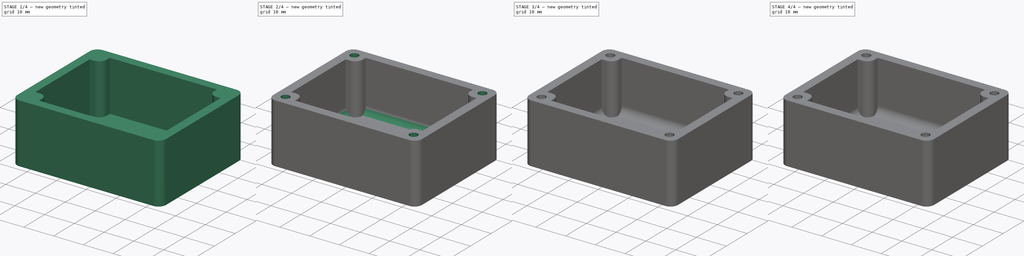
[diagram: build sequence overview — one tinted view per stage of 4, left to right]
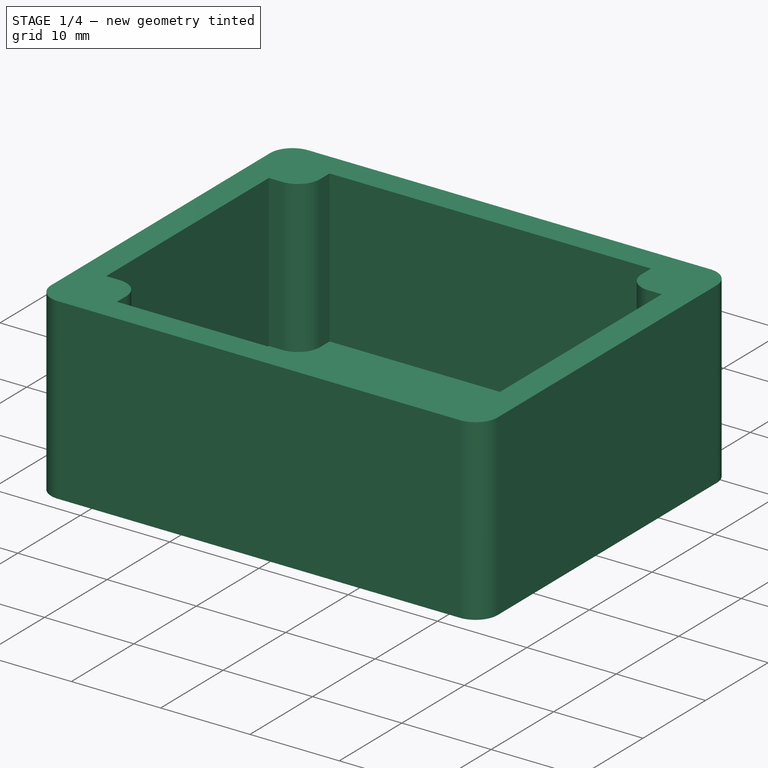
[diagram: stage 1 of 4 — iso view after this stage's code; geometry added in this stage tinted green]
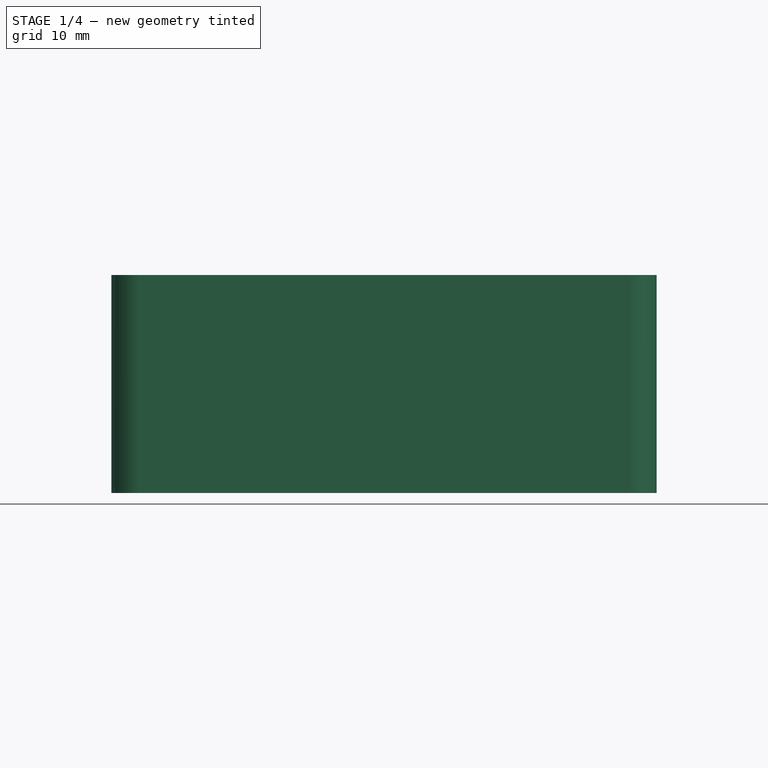
[diagram: stage 1 of 4 — front view after this stage's code; geometry added in this stage tinted green]
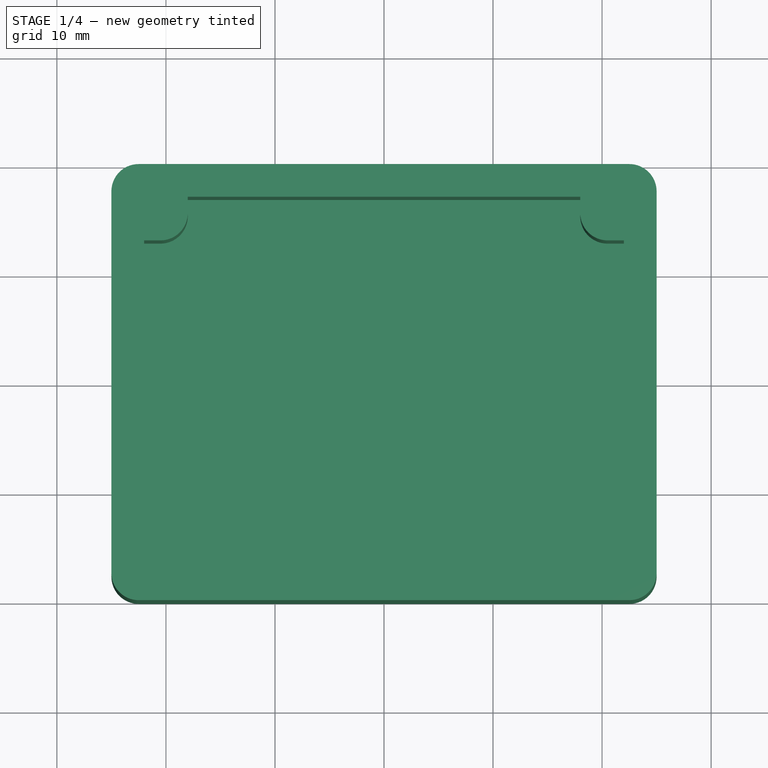
[diagram: stage 1 of 4 — top view after this stage's code; geometry added in this stage tinted green]
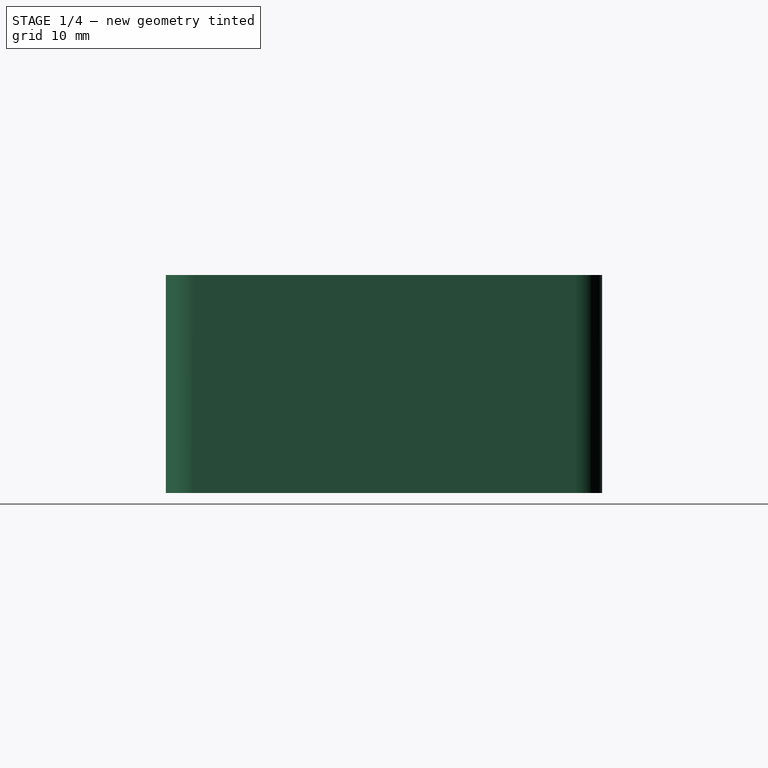
[diagram: stage 1 of 4 — right view after this stage's code; geometry added in this stage tinted green]
FCSTD DOCUMENT  (FreeCAD 1.0R39109 (Git))
Label: parametric Utility Box version 3.1
License: All rights reserved
LicenseURL: https://en.wikipedia.org/wiki/All_rights_reserved
objects: Sketcher::SketchObject×8, PartDesign::Pad×5, PartDesign::Pocket×4, Part::Part2DObjectPython×3, PartDesign::Body×3, Spreadsheet::Sheet×1, App::DocumentObjectGroup×1, PartDesign::AdditivePipe×1, PartDesign::Fillet×1, PartDesign::Chamfer×1
note: 58 computed .brp shape members not serialized (recipe doc carries the construction recipe); baked Part::Feature solids carry a one-line shape summary decoded from their .brp

FEATURE [Spreadsheet::Sheet] Spreadsheet
  cells = A1='Dimensions; B1='Values in mm.; A2='Box width; B2(boxwidth)=40; A3='Box length; B3(boxlength)=50; A4='Box depth; B4(boxdepth)=20; A5='Wall thickness; B5(wallthickness)=3; A6='Screw size; B6(screwsize)=3; A7='Screw pocket depth; B7(screwpocketdepth)=6; A8='Lid thickness; B8(lidthickness)=2; A10='reference values; B10='below.         Not; C10='editable; A11='Fillets; B11(cornerfillets)==B6 - 0.5; C11='computed; A12='screw pads; B12(screwpadsize)==B6 * 2 + 1; C12='computed; A13='screw hole offset; B13(screwholeoffset)==B12 / 2; C13='computed; A14='anchor length; B14(anchorlength)==B3 - B12 * 2; C14='computed; A15='anchor width; B15(anchorwidth)==B2 - B12 * 2; C15='computed
FEATURE [Sketcher::SketchObject] Sketch  label="body Sketch"
  ArcFitTolerance = 1e-06
  AttachmentSupport = -> [XY_Plane]
  FullyConstrained = true
  MakeInternals = false
  MapMode = 5
  expr: Constraints[31] = Spreadsheet.cornerfillets
  expr: Constraints[6] = Spreadsheet.boxlength
  expr: Constraints[7] = Spreadsheet.boxwidth
  sketch-geometry (17):
    g0: LineSegment StartX=-22.5 StartY=-20 StartZ=0 EndX=22.5 EndY=-20 EndZ=0
    g1: LineSegment StartX=25 StartY=-17.5 StartZ=0 EndX=25 EndY=17.5 EndZ=0
    g2: LineSegment StartX=22.5 StartY=20 StartZ=0 EndX=-22.5 EndY=20 EndZ=0
    g3: LineSegment StartX=-25 StartY=17.5 StartZ=0 EndX=-25 EndY=-17.5 EndZ=0
    g4: GeomPoint [constr] X=0 Y=0 Z=0
    g5: GeomPoint [constr] X=-25 Y=20 Z=0
    g6: GeomPoint [constr] X=-25 Y=-20 Z=0
    g7: GeomPoint [constr] X=25 Y=20 Z=0
    g8: GeomPoint [constr] X=25 Y=-20 Z=0
    g9: ArcOfCircle CenterX=-22.5 CenterY=17.5 CenterZ=0 NormalX=0 NormalY=0 NormalZ=1 AngleXU=0 Radius=2.5 StartAngle=1.5708 EndAngle=3.14159
    g10: GeomPoint [constr] X=-25 Y=20 Z=0
    g11: ArcOfCircle CenterX=22.5 CenterY=17.5 CenterZ=0 NormalX=0 NormalY=0 NormalZ=1 AngleXU=0 Radius=2.5 StartAngle=3e-16 EndAngle=1.5708
    g12: GeomPoint [constr] X=25 Y=20 Z=0
    g13: ArcOfCircle CenterX=22.5 CenterY=-17.5 CenterZ=0 NormalX=0 NormalY=0 NormalZ=1 AngleXU=0 Radius=2.5 StartAngle=4.71239 EndAngle=6.28319
    g14: GeomPoint [constr] X=25 Y=-20 Z=0
    g15: ArcOfCircle CenterX=-22.5 CenterY=-17.5 CenterZ=0 NormalX=0 NormalY=0 NormalZ=1 AngleXU=0 Radius=2.5 StartAngle=3.14159 EndAngle=4.71239
    g16: GeomPoint [constr] X=-25 Y=-20 Z=0
  constraints (32):
    c: Horizontal(g0)
    c: Horizontal(g2)
    c: Vertical(g1)
    c: Vertical(g3)
    c: Symmetric(g7,g6,g4)
    c: Coincident(g4,g-1)
    c: DistanceX(g5,g7) = 50
    c: DistanceY(g8,g7) = 40
    c: Coincident(g10,g5)
    c: Coincident(g12,g7)
    c: Coincident(g14,g8)
    c: Coincident(g16,g6)
    c: PointOnObject(g10,g2)
    c: PointOnObject(g10,g3)
    c: Tangent(g2,g9) = -1.5708
    c: Tangent(g3,g9) = -1.5708
    c: PointOnObject(g12,g2)
    c: PointOnObject(g12,g1)
    c: Tangent(g2,g11) = -1.5708
    c: Tangent(g1,g11) = -1.5708
    c: PointOnObject(g14,g1)
    c: PointOnObject(g14,g0)
    c: Tangent(g1,g13) = -1.5708
    c: Tangent(g0,g13) = -1.5708
    c: PointOnObject(g16,g0)
    c: PointOnObject(g16,g3)
    c: Tangent(g0,g15) = -1.5708
    c: Tangent(g3,g15) = -1.5708
    c: Equal(g9,g11)
    c: Equal(g9,g13)
    c: Equal(g9,g15)
    c: Radius(g9) = 2.5
FEATURE [Sketcher::SketchObject] Sketch007  label="mark Sketch"
  ArcFitTolerance = 1e-06
  FullyConstrained = false
  MakeInternals = false
  Placement = pos=(0,0,3) rot=(0,0,1;0rad)
  expr: .Placement.Base.z = Spreadsheet.wallthickness
  sketch-geometry (11):
    g0: LineSegment StartX=-2.05619 StartY=-3.42446 StartZ=0 EndX=-2.05619 EndY=2.94821 EndZ=0
    g1: LineSegment StartX=-2.05619 StartY=2.94821 StartZ=0 EndX=-1.00542 EndY=2.94066 EndZ=0
    g2: LineSegment StartX=-1.00542 StartY=2.94066 StartZ=0 EndX=-0.982738 EndY=0.257024 EndZ=0
    g3: LineSegment StartX=-0.982738 StartY=0.257024 StartZ=0 EndX=2.35857 EndY=2.91798 EndZ=0
    g4: LineSegment StartX=2.35857 StartY=2.91798 StartZ=0 EndX=3.71173 EndY=2.9331 EndZ=0
    g5: LineSegment StartX=3.71173 StartY=2.9331 StartZ=0 EndX=0 EndY=0 EndZ=0
    g6: LineSegment StartX=0 StartY=0 StartZ=0 EndX=3.98387 EndY=-3.42446 EndZ=0
    g7: LineSegment StartX=3.98387 StartY=-3.42446 StartZ=0 EndX=-2.05619 EndY=-3.42446 EndZ=0
    g8: LineSegment StartX=-0.990298 StartY=-0.370416 StartZ=0 EndX=-1.00542 EndY=-2.68363 EndZ=0
    g9: LineSegment StartX=-1.00542 StartY=-2.68363 StartZ=0 EndX=1.76137 EndY=-2.69119 EndZ=0
    g10: LineSegment StartX=1.76137 StartY=-2.69119 StartZ=0 EndX=-0.990298 EndY=-0.370416 EndZ=0
  constraints (11):
    c: Coincident(g0,g1)
    c: Coincident(g1,g2)
    c: Coincident(g2,g3)
    c: Coincident(g3,g4)
    c: Coincident(g4,g5)
    c: Coincident(g5,g6)
    c: Coincident(g6,g7)
    c: Coincident(g7,g0)
    c: Coincident(g8,g9)
    c: Coincident(g9,g10)
    c: Coincident(g10,g8)
FEATURE [Part::Part2DObjectPython] Clone2D  label="body Sketch clone"  # Draft 2D object (typed FeaturePython)
  Fuse = false
  Objects = -> [Sketch]
  Scale = (1,1,1)
FEATURE [PartDesign::Pad] Pad  label="main body Pad"
  Direction = (0,0,1)
  Length = 20
  Length2 = 10
  Profile = -> Clone2D
  ReferenceAxis = -> Clone2D [N_Axis]
  Refine = true
  Suppressed = false
  Type = 0
  expr: Length = Spreadsheet.boxdepth
FEATURE [Sketcher::SketchObject] Sketch011
  ArcFitTolerance = 1e-06
  AttachmentOffset = pos=(0,0,3) rot=(0,0,1;0rad)
  AttachmentSupport = -> [XY_Plane]
  FullyConstrained = true
  MakeInternals = false
  MapMode = 5
  Placement = pos=(0,0,3) rot=(0,0,1;0rad)
  expr: .AttachmentOffset.Base.z = Spreadsheet.wallthickness
  expr: Constraints[27] = Spreadsheet.cornerfillets
  expr: Constraints[6] = Spreadsheet.boxlength - Spreadsheet.wallthickness * 2
  expr: Constraints[7] = Spreadsheet.boxwidth - Spreadsheet.wallthickness * 2
  sketch-geometry (13):
    g0: LineSegment StartX=-19.5 StartY=-17 StartZ=0 EndX=19.5 EndY=-17 EndZ=0
    g1: LineSegment StartX=22 StartY=-14.5 StartZ=0 EndX=22 EndY=14.5 EndZ=0
    g2: LineSegment StartX=19.5 StartY=17 StartZ=0 EndX=-19.5 EndY=17 EndZ=0
    g3: LineSegment StartX=-22 StartY=14.5 StartZ=0 EndX=-22 EndY=-14.5 EndZ=0
    g4: GeomPoint [constr] X=0 Y=0 Z=0
    g5: ArcOfCircle CenterX=-19.5 CenterY=14.5 CenterZ=0 NormalX=0 NormalY=0 NormalZ=1 AngleXU=0 Radius=2.5 StartAngle=1.5708 EndAngle=3.14159
    g6: GeomPoint [constr] X=-22 Y=17 Z=0
    g7: ArcOfCircle CenterX=19.5 CenterY=14.5 CenterZ=0 NormalX=0 NormalY=0 NormalZ=1 AngleXU=0 Radius=2.5 StartAngle=4e-16 EndAngle=1.5708
    g8: GeomPoint [constr] X=22 Y=17 Z=0
    g9: ArcOfCircle CenterX=19.5 CenterY=-14.5 CenterZ=0 NormalX=0 NormalY=0 NormalZ=1 AngleXU=0 Radius=2.5 StartAngle=4.71239 EndAngle=6.28319
    g10: GeomPoint [constr] X=22 Y=-17 Z=0
    g11: ArcOfCircle CenterX=-19.5 CenterY=-14.5 CenterZ=0 NormalX=0 NormalY=0 NormalZ=1 AngleXU=0 Radius=2.5 StartAngle=3.14159 EndAngle=4.71239
    g12: GeomPoint [constr] X=-22 Y=-17 Z=0
  constraints (28):
    c: Horizontal(g0)
    c: Horizontal(g2)
    c: Vertical(g1)
    c: Vertical(g3)
    c: Symmetric(g8,g12,g4)
    c: Coincident(g4,g-1)
    c: Distance(g8,g6) = 44
    c: Distance(g12,g6) = 34
    c: PointOnObject(g6,g2)
    c: PointOnObject(g6,g3)
    c: Tangent(g2,g5) = -1.5708
    c: Tangent(g3,g5) = -1.5708
    c: PointOnObject(g8,g2)
    c: PointOnObject(g8,g1)
    c: Tangent(g2,g7) = -1.5708
    c: Tangent(g1,g7) = -1.5708
    c: PointOnObject(g10,g1)
    c: PointOnObject(g10,g0)
    c: Tangent(g1,g9) = -1.5708
    c: Tangent(g0,g9) = -1.5708
    c: PointOnObject(g12,g0)
    c: PointOnObject(g12,g3)
    c: Tangent(g0,g11) = -1.5708
    c: Tangent(g3,g11) = -1.5708
    c: Equal(g5,g7)
    c: Equal(g5,g9)
    c: Equal(g5,g11)
    c: Radius(g5) = 2.5
FEATURE [PartDesign::Pocket] Pocket  label="hollow out Pocket"
  BaseFeature = -> Pad
  Direction = (0,0,-1)
  Length = 17
  Length2 = 5
  Profile = -> Sketch011
  ReferenceAxis = -> Sketch011 [N_Axis]
  Refine = true
  Reversed = true
  Suppressed = false
  Type = 0
  expr: Length = Spreadsheet.boxdepth - Spreadsheet.wallthickness
FEATURE [Sketcher::SketchObject] Sketch012  label="fillet sweep path Sketch"
  ArcFitTolerance = 1e-06
  AttachmentOffset = pos=(0,0,3) rot=(0,0,1;0rad)
  AttachmentSupport = -> [XY_Plane]
  FullyConstrained = true
  MakeInternals = false
  MapMode = 5
  Placement = pos=(0,0,3) rot=(0,0,1;0rad)
  expr: .AttachmentOffset.Base.z = Spreadsheet.wallthickness
  expr: Constraints[10] = Spreadsheet.boxlength - Spreadsheet.wallthickness * 2
  expr: Constraints[11] = Spreadsheet.boxwidth - Spreadsheet.wallthickness * 2
  sketch-geometry (5):
    g0: LineSegment StartX=-22 StartY=-17 StartZ=0 EndX=22 EndY=-17 EndZ=0
    g1: LineSegment StartX=22 StartY=-17 StartZ=0 EndX=22 EndY=17 EndZ=0
    g2: LineSegment StartX=22 StartY=17 StartZ=0 EndX=-22 EndY=17 EndZ=0
    g3: LineSegment StartX=-22 StartY=17 StartZ=0 EndX=-22 EndY=-17 EndZ=0
    g4: GeomPoint [constr] X=0 Y=0 Z=0
  constraints (12):
    c: Coincident(g0,g1)
    c: Coincident(g1,g2)
    c: Coincident(g2,g3)
    c: Coincident(g3,g0)
    c: Horizontal(g0)
    c: Horizontal(g2)
    c: Vertical(g1)
    c: Vertical(g3)
    c: Symmetric(g2,g0,g4)
    c: Coincident(g4,g-1)
    c: Distance(g2) = 44
    c: Distance(g3) = 34
FEATURE [Sketcher::SketchObject] Sketch013  label="bottom fillet profile Sketch"
  ArcFitTolerance = 1e-06
  AttachmentSupport = -> [XZ_Plane]
  ExternalGeometry = -> [Sketch012]
  FullyConstrained = true
  MakeInternals = false
  MapMode = 5
  Placement = pos=(0,0,0) rot=(1,0,0;1.5708rad)
  expr: Constraints[7] = Spreadsheet.boxlength / 2 - Spreadsheet.wallthickness - Spreadsheet.screwsize + 0.5
  sketch-geometry (3):
    g0: LineSegment StartX=-22 StartY=3 StartZ=0 EndX=-22 EndY=5.5 EndZ=0
    g1: LineSegment StartX=-22 StartY=3 StartZ=0 EndX=-19.5 EndY=3 EndZ=0
    g2: ArcOfCircle CenterX=-19.5 CenterY=5.5 CenterZ=0 NormalX=0 NormalY=0 NormalZ=1 AngleXU=0 Radius=2.5 StartAngle=3.14159 EndAngle=4.71239
  constraints (9):
    c: Coincident(g0,g-3)
    c: Vertical(g0)
    c: Coincident(g1,g0)
    c: Horizontal(g1)
    c: Coincident(g2,g1)
    c: Coincident(g2,g0)
    c: Vertical(g1,g2)
    c: DistanceX(g1,g-1) = 19.5
    c: Equal(g1,g0)
FEATURE [PartDesign::Pad] Pad009  label="screw pads Pad"
  BaseFeature = -> Pocket
  Direction = (0,0,1)
  Length = 17
  Length2 = 10
  Profile = -> Clone2D001 [Edge5,Edge10,Edge9,Edge8,Edge7,Edge6,Edge26,Edge27,Edge28,Edge23,Edge24,Edge25,Edge11,Edge16,Edge15,Edge14,Edge13,Edge12,Edge18,Edge17,Edge22,Edge21,Edge20,Edge19]
  ReferenceAxis = -> Clone2D001 [N_Axis]
  Refine = true
  Reversed = true
  Suppressed = false
  Type = 0
  expr: Length = Spreadsheet.boxdepth - Spreadsheet.wallthickness
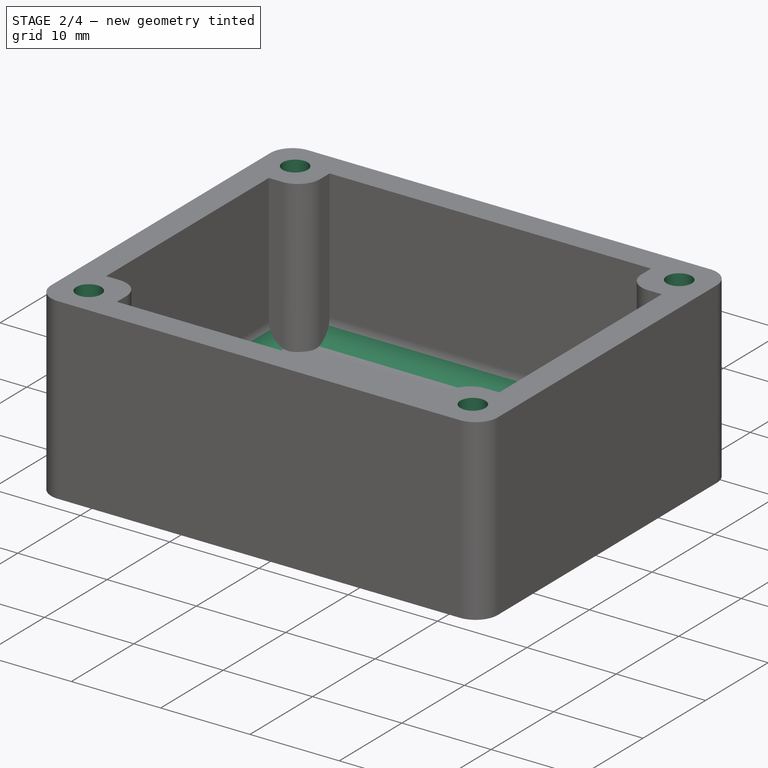
[diagram: stage 2 of 4 — iso view after this stage's code; geometry added in this stage tinted green]
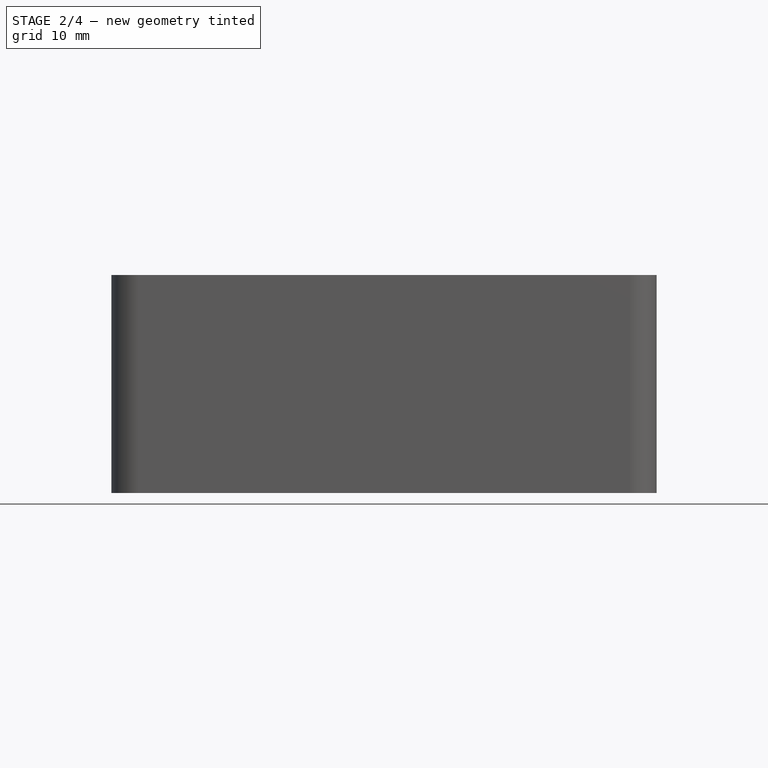
[diagram: stage 2 of 4 — front view after this stage's code; geometry added in this stage tinted green]
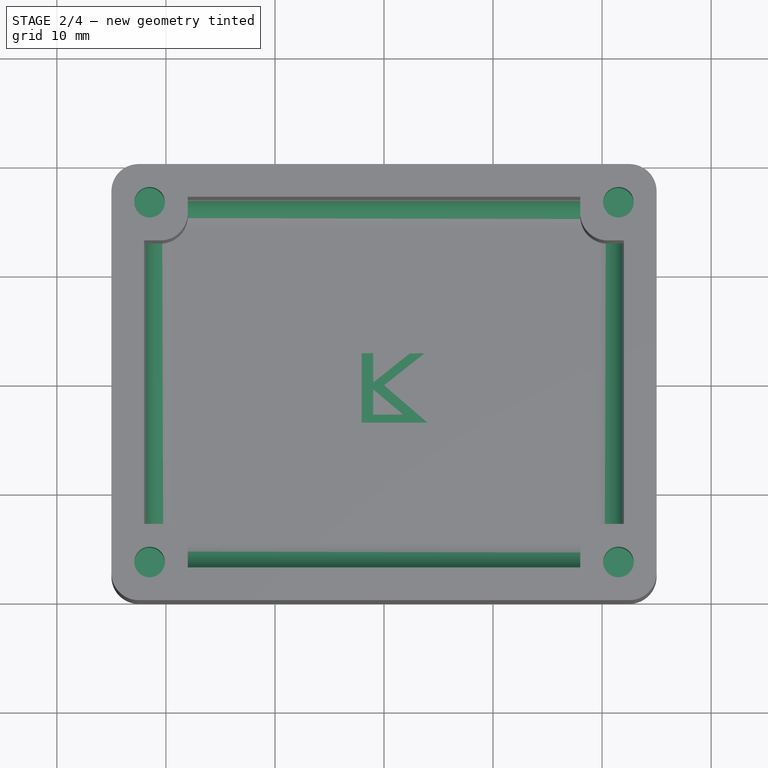
[diagram: stage 2 of 4 — top view after this stage's code; geometry added in this stage tinted green]
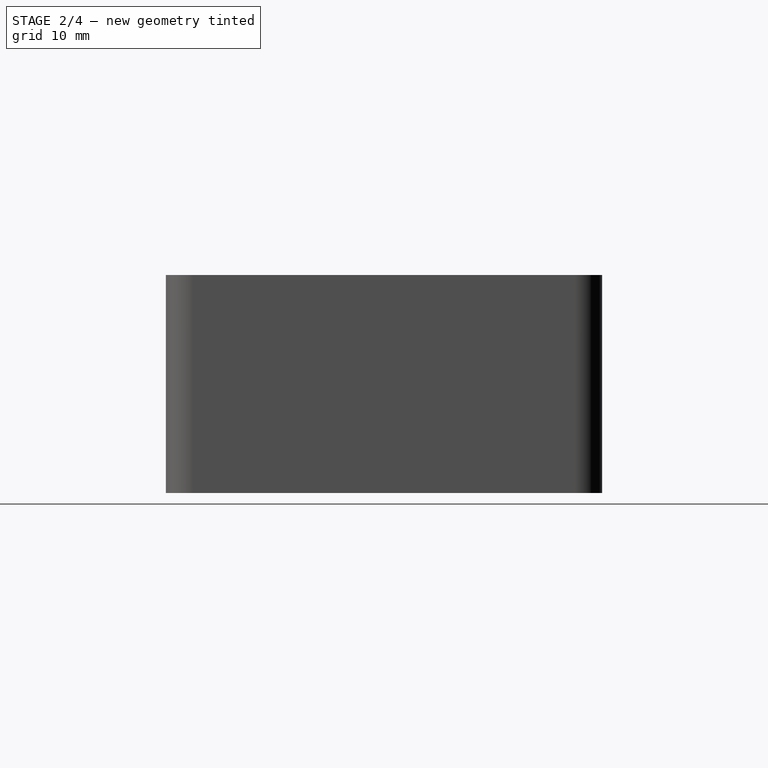
[diagram: stage 2 of 4 — right view after this stage's code; geometry added in this stage tinted green]
FEATURE [PartDesign::Pocket] Pocket002  label="screw holes Pocket"
  BaseFeature = -> Pad009
  Direction = (0,0,-1)
  Length = 6
  Length2 = 5
  Profile = -> Clone2D001 [Edge1,Edge4,Edge2,Edge3]
  ReferenceAxis = -> Clone2D001 [N_Axis]
  Refine = true
  Suppressed = false
  Type = 0
  expr: Length = Spreadsheet.screwpocketdepth
FEATURE [PartDesign::AdditivePipe] AdditivePipe  label="inside edge fillet AdditivePipe"
  AuxilleryCurvelinear = true
  AuxillerySpineTangent = false
  BaseFeature = -> Pocket002
  Binormal = (0,0,0)
  Mode = 0
  Profile = -> Sketch013
  Refine = true
  Spine = -> Sketch012
  SpineTangent = false
  Suppressed = false
  Transformation = 0
  Transition = 1
FEATURE [PartDesign::Body] Body001  label="Lid Body"
  AllowCompound = false
  Group = -> [Clone2D002,Pad003,Sketch009,Pad008,Pocket001,Chamfer001]
  Origin = -> Origin001
  Tip = -> Chamfer001
FEATURE [PartDesign::Pocket] Pocket003
  BaseFeature = -> AdditivePipe
  Direction = (0,0,-1)
  Length = 0.3
  Length2 = 5
  Profile = -> Sketch007
  ReferenceAxis = -> Sketch007 [N_Axis]
  Refine = true
  Suppressed = false
  Type = 0
FEATURE [PartDesign::Body] Body  label="Box Body"
  AllowCompound = false
  Group = -> [Clone2D,Pad,Clone2D001,Sketch007,Sketch011,Pocket,Sketch012,Sketch013,Pad009,Pocket002,AdditivePipe,Pocket003]
  Origin = -> Origin
  Tip = -> Pocket003
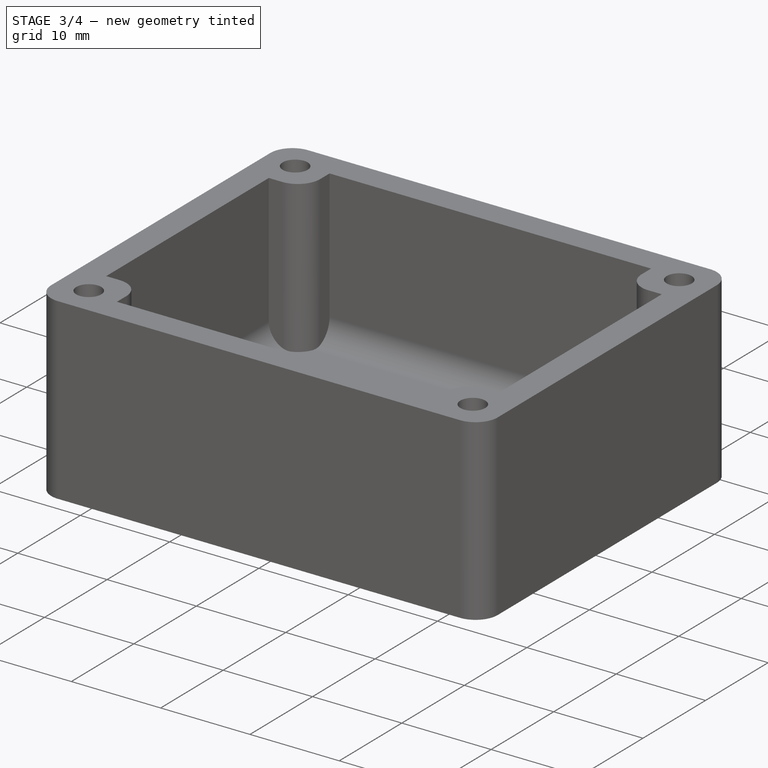
[diagram: stage 3 of 4 — iso view after this stage's code; geometry added in this stage tinted green]
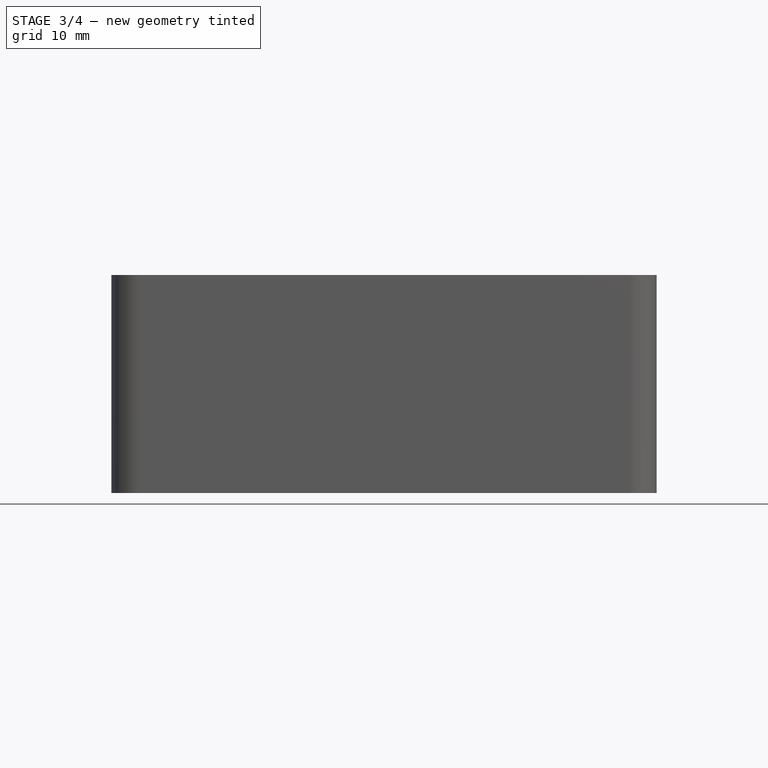
[diagram: stage 3 of 4 — front view after this stage's code; geometry added in this stage tinted green]
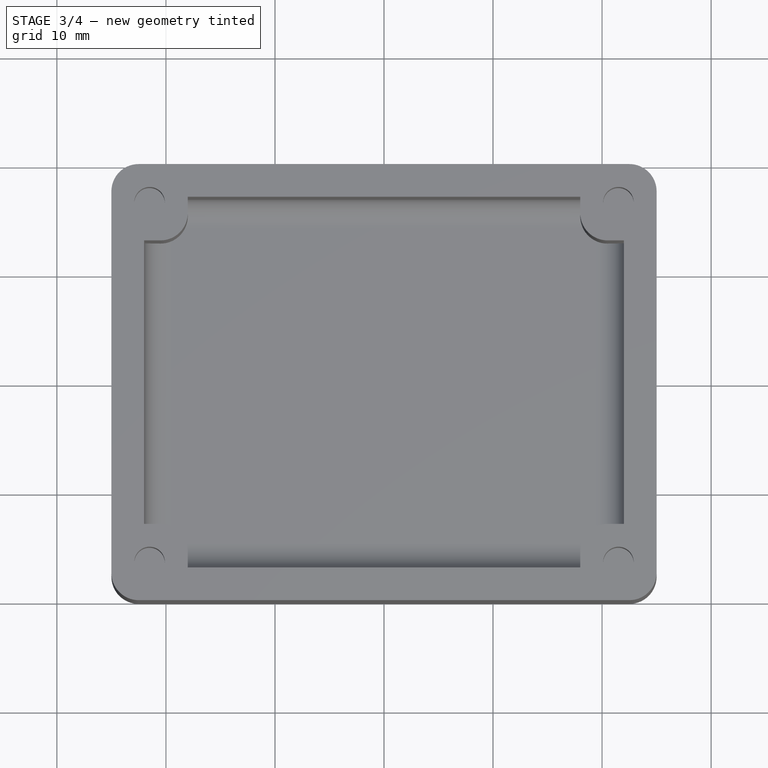
[diagram: stage 3 of 4 — top view after this stage's code; geometry added in this stage tinted green]
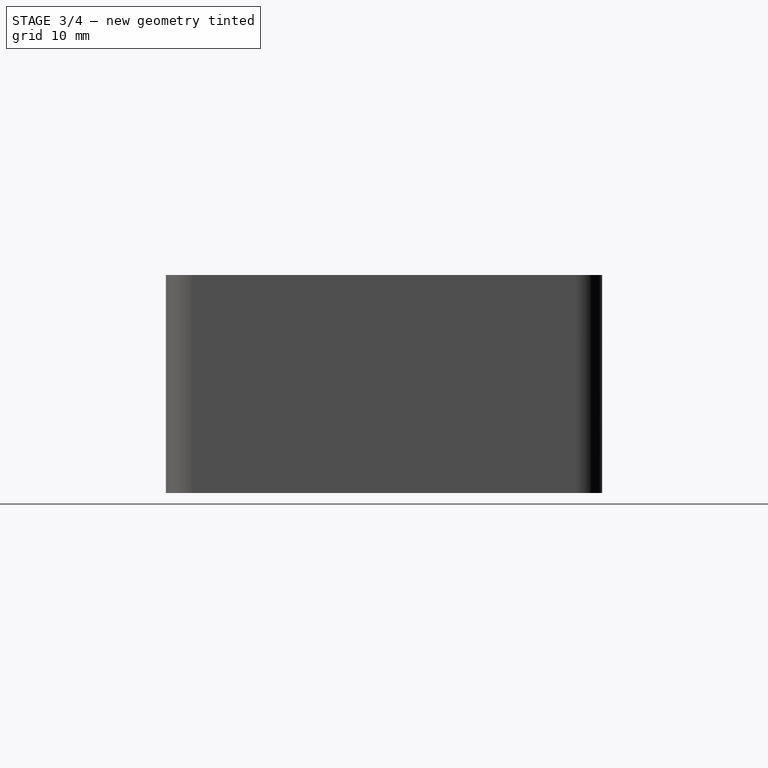
[diagram: stage 3 of 4 — right view after this stage's code; geometry added in this stage tinted green]
FEATURE [Sketcher::SketchObject] Sketch008  label="screw pads and holes Sketch"
  ArcFitTolerance = 1e-06
  AttachmentSupport = -> [XY_Plane]
  FullyConstrained = true
  MakeInternals = false
  MapMode = 5
  expr: Constraints[106] = Spreadsheet.cornerfillets
  expr: Constraints[10] = Spreadsheet.screwholeoffset
  expr: Constraints[11] = Spreadsheet.screwholeoffset
  expr: Constraints[12] = Spreadsheet.screwholeoffset
  expr: Constraints[13] = Spreadsheet.screwholeoffset
  expr: Constraints[5] = Spreadsheet.boxlength
  expr: Constraints[61] = Spreadsheet.anchorlength
  expr: Constraints[62] = Spreadsheet.anchorwidth
  expr: Constraints[6] = Spreadsheet.boxwidth
  expr: Constraints[8] = Spreadsheet.screwsize - 0.2
  expr: Constraints[9] = Spreadsheet.screwholeoffset
  sketch-geometry (50):
    g0: LineSegment [constr] StartX=25 StartY=20 StartZ=0 EndX=-25 EndY=20 EndZ=0
    g1: LineSegment [constr] StartX=-25 StartY=20 StartZ=0 EndX=-25 EndY=-20 EndZ=0
    g2: GeomPoint [constr] X=0 Y=0 Z=0
    g3: Circle CenterX=-21.5 CenterY=16.5 CenterZ=0 NormalX=0 NormalY=0 NormalZ=1 AngleXU=0 Radius=1.4
    g4: Circle CenterX=21.5 CenterY=16.5 CenterZ=0 NormalX=0 NormalY=0 NormalZ=1 AngleXU=0 Radius=1.4
    g5: Circle CenterX=21.5 CenterY=-16.5 CenterZ=0 NormalX=0 NormalY=0 NormalZ=1 AngleXU=0 Radius=1.4
    g6: Circle CenterX=-21.5 CenterY=-16.5 CenterZ=0 NormalX=0 NormalY=0 NormalZ=1 AngleXU=0 Radius=1.4
    g7: GeomPoint [constr] X=-25 Y=20 Z=0
    g8: GeomPoint [constr] X=25 Y=20 Z=0
    g9: GeomPoint [constr] X=25 Y=-20 Z=0
    g10: GeomPoint [constr] X=-25 Y=-20 Z=0
    g11: LineSegment StartX=-25 StartY=17.5 StartZ=0 EndX=-25 EndY=13 EndZ=0
    g12: LineSegment StartX=-25 StartY=13 StartZ=0 EndX=-20.5 EndY=13 EndZ=0
    g13: LineSegment StartX=-18 StartY=15.5 StartZ=0 EndX=-18 EndY=20 EndZ=0
    g14: LineSegment StartX=-18 StartY=20 StartZ=0 EndX=-22.5 EndY=20 EndZ=0
    g15: LineSegment StartX=22.5 StartY=20 StartZ=0 EndX=18 EndY=20 EndZ=0
    g16: LineSegment StartX=18 StartY=20 StartZ=0 EndX=18 EndY=15.5 EndZ=0
    g17: LineSegment StartX=20.5 StartY=13 StartZ=0 EndX=25 EndY=13 EndZ=0
    g18: LineSegment StartX=25 StartY=13 StartZ=0 EndX=25 EndY=17.5 EndZ=0
    g19: LineSegment StartX=25 StartY=-17.5 StartZ=0 EndX=25 EndY=-13 EndZ=0
    g20: LineSegment StartX=25 StartY=-13 StartZ=0 EndX=20.5 EndY=-13 EndZ=0
    g21: LineSegment StartX=18 StartY=-15.5 StartZ=0 EndX=18 EndY=-20 EndZ=0
    g22: LineSegment StartX=18 StartY=-20 StartZ=0 EndX=22.5 EndY=-20 EndZ=0
    g23: LineSegment StartX=-22.5 StartY=-20 StartZ=0 EndX=-18 EndY=-20 EndZ=0
    g24: LineSegment StartX=-18 StartY=-20 StartZ=0 EndX=-18 EndY=-15.5 EndZ=0
    g25: LineSegment StartX=-20.5 StartY=-13 StartZ=0 EndX=-25 EndY=-13 EndZ=0
    g26: LineSegment StartX=-25 StartY=-13 StartZ=0 EndX=-25 EndY=-17.5 EndZ=0
    g27: LineSegment [constr] StartX=25 StartY=20 StartZ=0 EndX=25 EndY=-20 EndZ=0
    g28: LineSegment [constr] StartX=25 StartY=-20 StartZ=0 EndX=-25 EndY=-20 EndZ=0
    g29: LineSegment [constr] StartX=-18 StartY=-13 StartZ=0 EndX=18 EndY=-13 EndZ=0
    g30: LineSegment [constr] StartX=18 StartY=-13 StartZ=0 EndX=18 EndY=13 EndZ=0
    g31: LineSegment [constr] StartX=18 StartY=13 StartZ=0 EndX=-18 EndY=13 EndZ=0
    g32: LineSegment [constr] StartX=-18 StartY=13 StartZ=0 EndX=-18 EndY=-13 EndZ=0
    g33: GeomPoint [constr] X=0 Y=0 Z=0
    g34: ArcOfCircle CenterX=-22.5 CenterY=17.5 CenterZ=0 NormalX=0 NormalY=0 NormalZ=1 AngleXU=0 Radius=2.5 StartAngle=1.5708 EndAngle=3.14159
    g35: GeomPoint [constr] X=-25 Y=20 Z=0
    g36: ArcOfCircle CenterX=-20.5 CenterY=15.5 CenterZ=0 NormalX=0 NormalY=0 NormalZ=1 AngleXU=0 Radius=2.5 StartAngle=4.71239 EndAngle=6.28319
    g37: GeomPoint [constr] X=-18 Y=13 Z=0
    g38: ArcOfCircle CenterX=22.5 CenterY=17.5 CenterZ=0 NormalX=0 NormalY=0 NormalZ=1 AngleXU=0 Radius=2.5 StartAngle=-9e-16 EndAngle=1.5708
    g39: GeomPoint [constr] X=25 Y=20 Z=0
    g40: ArcOfCircle CenterX=20.5 CenterY=15.5 CenterZ=0 NormalX=0 NormalY=0 NormalZ=1 AngleXU=0 Radius=2.5 StartAngle=3.14159 EndAngle=4.71239
    g41: GeomPoint [constr] X=18 Y=13 Z=0
    g42: ArcOfCircle CenterX=22.5 CenterY=-17.5 CenterZ=0 NormalX=0 NormalY=0 NormalZ=1 AngleXU=0 Radius=2.5 StartAngle=4.71239 EndAngle=6.28319
    g43: GeomPoint [constr] X=25 Y=-20 Z=0
    g44: ArcOfCircle CenterX=20.5 CenterY=-15.5 CenterZ=0 NormalX=0 NormalY=0 NormalZ=1 AngleXU=0 Radius=2.5 StartAngle=1.5708 EndAngle=3.14159
    g45: GeomPoint [constr] X=18 Y=-13 Z=0
    g46: ArcOfCircle CenterX=-20.5 CenterY=-15.5 CenterZ=0 NormalX=0 NormalY=0 NormalZ=1 AngleXU=0 Radius=2.5 StartAngle=3e-16 EndAngle=1.5708
    g47: GeomPoint [constr] X=-18 Y=-13 Z=0
    g48: ArcOfCircle CenterX=-22.5 CenterY=-17.5 CenterZ=0 NormalX=0 NormalY=0 NormalZ=1 AngleXU=0 Radius=2.5 StartAngle=3.14159 EndAngle=4.71239
    g49: GeomPoint [constr] X=-25 Y=-20 Z=0
  constraints (113):
    c: Coincident(g0,g1)
    c: Horizontal(g0)
    c: Vertical(g1)
    c: Symmetric(g0,g1,g2)
    c: Coincident(g2,g-1)
    c: Distance(g0) = 50
    c: Distance(g1) = 40
    c: Coincident(g7,g0)
    c: Diameter(g3) = 2.8
    c: DistanceX(g0,g3) = 3.5
    c: DistanceY(g3,g0) = 3.5
    c: DistanceY(g1,g6) = 3.5
    c: DistanceX(g5,g9) = 3.5
    c: DistanceY(g4,g0) = 3.5
    c: Coincident(g11,g12)
    c: Coincident(g13,g14)
    c: Vertical(g11)
    c: Vertical(g13)
    c: Horizontal(g12)
    c: Horizontal(g14)
    c: Coincident(g35,g0)
    c: Coincident(g15,g16)
    c: Coincident(g17,g18)
    c: Horizontal(g15)
    c: Horizontal(g17)
    c: Vertical(g16)
    c: Vertical(g18)
    c: Coincident(g39,g0)
    c: Coincident(g19,g20)
    c: Coincident(g21,g22)
    c: Vertical(g19)
    c: Vertical(g21)
    c: Horizontal(g20)
    c: Horizontal(g22)
    c: Coincident(g23,g24)
    c: Coincident(g25,g26)
    c: Horizontal(g23)
    c: Horizontal(g25)
    c: Vertical(g24)
    c: Vertical(g26)
    c: Coincident(g49,g1)
    c: Vertical(g9,g8)
    c: Coincident(g27,g8)
    c: Coincident(g27,g9)
    c: Coincident(g28,g9)
    c: Coincident(g28,g10)
    c: Horizontal(g28)
    c: Equal(g27,g1)
    c: Equal(g28,g0)
    c: Coincident(g9,g43)
    c: Coincident(g8,g0)
    c: Vertical(g5,g4)
    c: Coincident(g29,g30)
    c: Coincident(g30,g31)
    c: Coincident(g31,g32)
    c: Coincident(g32,g29)
    c: Horizontal(g31)
    c: Vertical(g30)
    c: Vertical(g32)
    c: Symmetric(g31,g29,g33)
    c: Coincident(g33,g2)
    c: Distance(g31) = 36
    c: Distance(g32) = 26
    c: Coincident(g37,g31)
    c: Coincident(g41,g30)
    c: Coincident(g45,g29)
    c: Coincident(g29,g47)
    c: PointOnObject(g35,g11)
    c: PointOnObject(g35,g14)
    c: Tangent(g11,g34) = -1.5708
    c: Tangent(g14,g34) = -1.5708
    c: PointOnObject(g37,g12)
    c: PointOnObject(g37,g13)
    c: Tangent(g12,g36) = -1.5708
    c: Tangent(g13,g36) = -1.5708
    c: PointOnObject(g39,g18)
    c: PointOnObject(g39,g15)
    c: Tangent(g18,g38) = -1.5708
    c: Tangent(g15,g38) = -1.5708
    c: PointOnObject(g41,g17)
    c: PointOnObject(g41,g16)
    c: Tangent(g17,g40) = -1.5708
    c: Tangent(g16,g40) = -1.5708
    c: PointOnObject(g43,g19)
    c: PointOnObject(g43,g22)
    c: Tangent(g19,g42) = -1.5708
    c: Tangent(g22,g42) = -1.5708
    c: PointOnObject(g45,g21)
    c: PointOnObject(g45,g20)
    c: Tangent(g21,g44) = -1.5708
    c: Tangent(g20,g44) = -1.5708
    c: PointOnObject(g47,g24)
    c: PointOnObject(g47,g25)
    c: Tangent(g24,g46) = -1.5708
    c: Tangent(g25,g46) = -1.5708
    c: PointOnObject(g49,g23)
    c: PointOnObject(g49,g26)
    c: Tangent(g23,g48) = -1.5708
    c: Tangent(g26,g48) = -1.5708
    c: Equal(g34,g36)
    c: Equal(g34,g38)
    c: Equal(g34,g40)
    c: Equal(g34,g42)
    c: Equal(g34,g44)
    c: Equal(g34,g48)
    c: Equal(g34,g46)
    c: Radius(g34) = 2.5
    c: Vertical(g3,g6)
    c: Horizontal(g29)
    c: Equal(g6,g3)
    c: Horizontal(g5,g6)
    c: Equal(g5,g6)
    c: Equal(g4,g3)
FEATURE [App::DocumentObjectGroup] Group  label="Master sketches"
  Group = -> [Sketch,Sketch008]
FEATURE [Part::Part2DObjectPython] Clone2D001  label="screw pads and holes Sketch clone"  # Draft 2D object (typed FeaturePython)
  Fuse = false
  Objects = -> [Sketch008]
  Placement = pos=(0,0,20) rot=(0,0,1;0rad)
  Scale = (1,1,1)
  expr: .Placement.Base.z = Spreadsheet.boxdepth
FEATURE [Part::Part2DObjectPython] Clone2D002  label="body Sketch clone001"  # Draft 2D object (typed FeaturePython)
  AttachmentSupport = -> [XY_Plane]
  Fuse = false
  MapMode = 5
  Objects = -> [Sketch]
  Scale = (1,1,1)
FEATURE [PartDesign::Pad] Pad003  label="lid body Pad"
  Direction = (0,0,1)
  Length = 2
  Length2 = 10
  Profile = -> Clone2D002
  ReferenceAxis = -> Clone2D002 [N_Axis]
  Refine = true
  Suppressed = false
  Type = 0
  expr: Length = Spreadsheet.lidthickness
FEATURE [PartDesign::Pad] Pad008  label="align Pad"
  BaseFeature = -> Pad003
  Direction = (0,0,1)
  Length = 1
  Length2 = 10
  Profile = -> Sketch009 [Edge1,Edge16,Edge15,Edge14,Edge13,Edge12,Edge11,Edge10,Edge9,Edge8,Edge7,Edge6,Edge5,Edge4,Edge3,Edge2]
  ReferenceAxis = -> Sketch009 [N_Axis]
  Refine = true
  Suppressed = false
  Type = 0
FEATURE [PartDesign::Pocket] Pocket001  label="screw holes Pocket001"
  BaseFeature = -> Pad008
  Direction = (0,0,-1)
  Length = 3
  Length2 = 5
  Profile = -> Sketch009 [Edge17,Edge18,Edge19,Edge20]
  ReferenceAxis = -> Sketch009 [N_Axis]
  Refine = true
  Suppressed = false
  Type = 0
  expr: Length = Spreadsheet.wallthickness
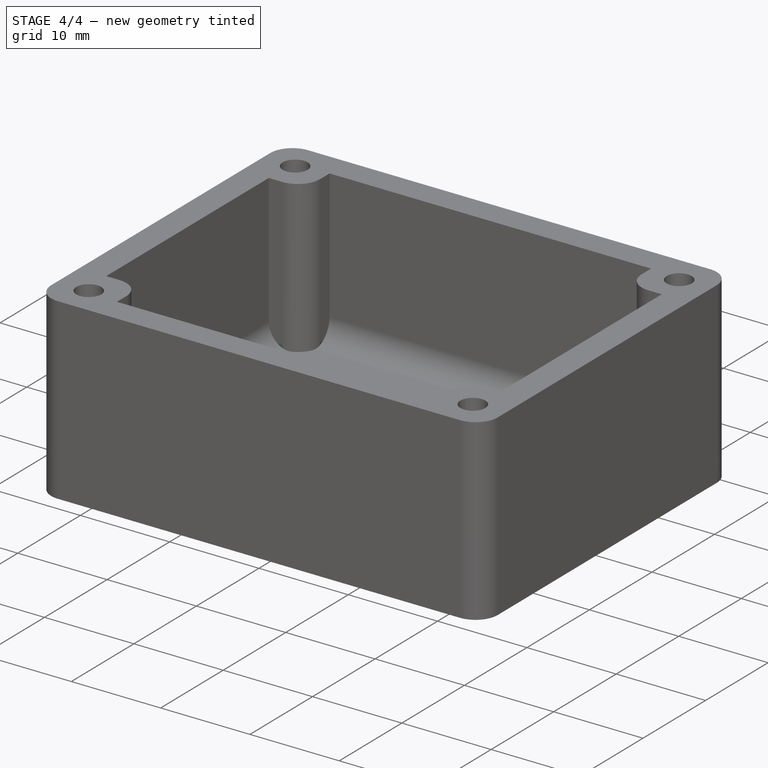
[diagram: stage 4 of 4 — iso view after this stage's code; geometry added in this stage tinted green]
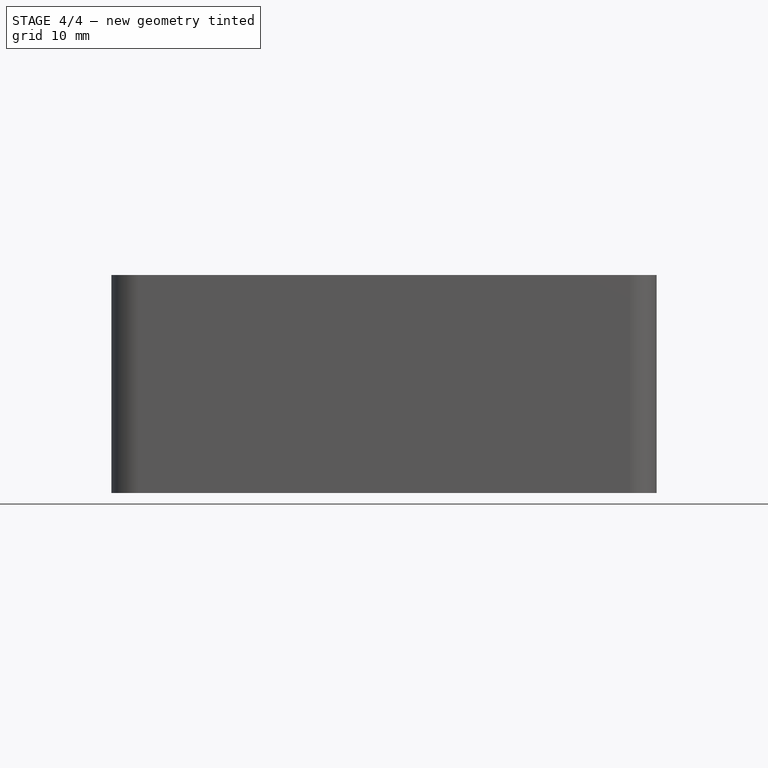
[diagram: stage 4 of 4 — front view after this stage's code; geometry added in this stage tinted green]
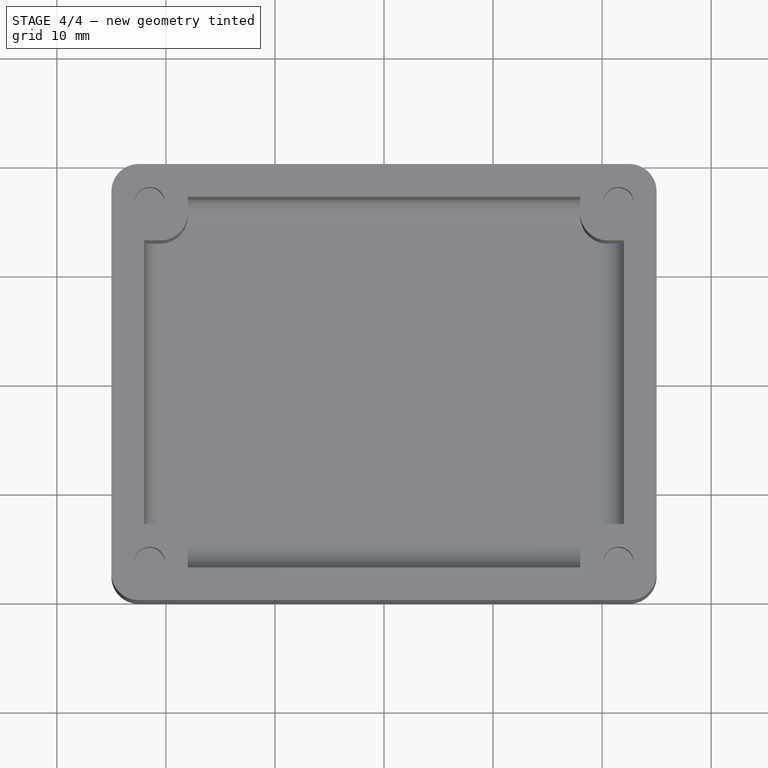
[diagram: stage 4 of 4 — top view after this stage's code; geometry added in this stage tinted green]
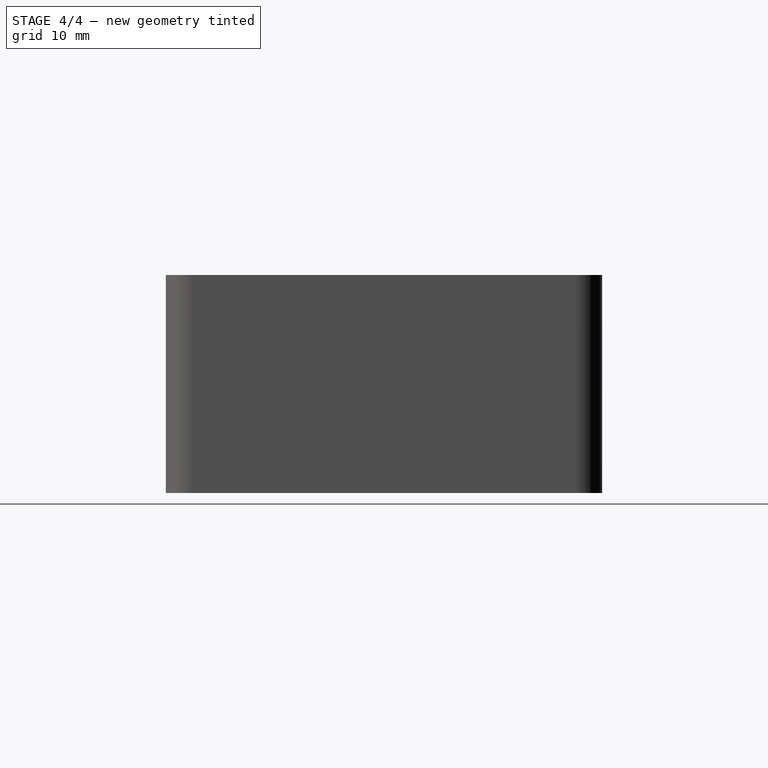
[diagram: stage 4 of 4 — right view after this stage's code; geometry added in this stage tinted green]
FEATURE [Sketcher::SketchObject] Sketch009  label="align pad Sketch"
  ArcFitTolerance = 1e-06
  AttachmentOffset = pos=(0,0,2) rot=(0,0,1;0rad)
  AttachmentSupport = -> [XY_Plane001]
  FullyConstrained = true
  MakeInternals = false
  MapMode = 5
  Placement = pos=(0,0,2) rot=(0,0,1;0rad)
  expr: .AttachmentOffset.Base.z = Spreadsheet.lidthickness
  expr: .Constraints.screwholeoffset = Spreadsheet.screwsize + 0.5
  expr: .Constraints.screwpadoffset = Spreadsheet.screwpadsize + 0.2
  expr: .Constraints.walloffset = Spreadsheet.wallthickness + 0.2
  expr: Constraints[10] = Spreadsheet.boxlength
  expr: Constraints[11] = Spreadsheet.boxwidth
  expr: Constraints[34] = .Constraints.screwpadoffset
  expr: Constraints[36] = .Constraints.screwpadoffset
  expr: Constraints[37] = .Constraints.walloffset
  expr: Constraints[39] = .Constraints.screwpadoffset
  expr: Constraints[40] = .Constraints.walloffset
  expr: Constraints[42] = .Constraints.screwpadoffset
  expr: Constraints[43] = .Constraints.walloffset
  expr: Constraints[47] = Spreadsheet.screwsize + 0.2
  expr: Constraints[49] = .Constraints.screwholeoffset
  expr: Constraints[51] = .Constraints.screwholeoffset
  expr: Constraints[53] = .Constraints.screwholeoffset
  expr: Constraints[55] = .Constraints.screwholeoffset
  expr: Constraints[75] = Spreadsheet.screwsize - 0.5
  sketch-geometry (30):
    g0: LineSegment [constr] StartX=-25 StartY=-20 StartZ=0 EndX=25 EndY=-20 EndZ=0
    g1: LineSegment [constr] StartX=25 StartY=-20 StartZ=0 EndX=25 EndY=20 EndZ=0
    g2: LineSegment [constr] StartX=25 StartY=20 StartZ=0 EndX=-25 EndY=20 EndZ=0
    g3: LineSegment [constr] StartX=-25 StartY=20 StartZ=0 EndX=-25 EndY=-20 EndZ=0
    g4: GeomPoint [constr] X=0 Y=0 Z=0
    g5: LineSegment StartX=-17.8 StartY=16.8 StartZ=0 EndX=17.8 EndY=16.8 EndZ=0
    g6: LineSegment StartX=17.8 StartY=16.8 StartZ=0 EndX=17.8 EndY=15.3 EndZ=0
    g7: LineSegment StartX=20.3 StartY=12.8 StartZ=0 EndX=21.8 EndY=12.8 EndZ=0
    g8: LineSegment StartX=21.8 StartY=12.8 StartZ=0 EndX=21.8 EndY=-12.8 EndZ=0
    g9: LineSegment StartX=21.8 StartY=-12.8 StartZ=0 EndX=20.3 EndY=-12.8 EndZ=0
    g10: LineSegment StartX=17.8 StartY=-15.3 StartZ=0 EndX=17.8 EndY=-16.8 EndZ=0
    g11: LineSegment StartX=17.8 StartY=-16.8 StartZ=0 EndX=-17.8 EndY=-16.8 EndZ=0
    g12: LineSegment StartX=-17.8 StartY=-16.8 StartZ=0 EndX=-17.8 EndY=-15.3 EndZ=0
    g13: LineSegment StartX=-20.3 StartY=-12.8 StartZ=0 EndX=-21.8 EndY=-12.8 EndZ=0
    g14: LineSegment StartX=-21.8 StartY=-12.8 StartZ=0 EndX=-21.8 EndY=12.8 EndZ=0
    g15: LineSegment StartX=-21.8 StartY=12.8 StartZ=0 EndX=-20.3 EndY=12.8 EndZ=0
    g16: LineSegment StartX=-17.8 StartY=15.3 StartZ=0 EndX=-17.8 EndY=16.8 EndZ=0
    g17: Circle CenterX=-21.5 CenterY=16.5 CenterZ=0 NormalX=0 NormalY=0 NormalZ=1 AngleXU=0 Radius=1.6
    g18: Circle CenterX=21.5 CenterY=16.5 CenterZ=0 NormalX=0 NormalY=0 NormalZ=1 AngleXU=0 Radius=1.6
    g19: Circle CenterX=21.5 CenterY=-16.5 CenterZ=0 NormalX=0 NormalY=0 NormalZ=1 AngleXU=0 Radius=1.6
    g20: Circle CenterX=-21.5 CenterY=-16.5 CenterZ=0 NormalX=0 NormalY=0 NormalZ=1 AngleXU=0 Radius=1.6
    g21: ArcOfCircle CenterX=-20.3 CenterY=15.3 CenterZ=0 NormalX=0 NormalY=0 NormalZ=1 AngleXU=0 Radius=2.5 StartAngle=4.71239 EndAngle=6.28319
    g22: GeomPoint [constr] X=-17.8 Y=12.8 Z=0
    g23: ArcOfCircle CenterX=20.3 CenterY=15.3 CenterZ=0 NormalX=0 NormalY=0 NormalZ=1 AngleXU=0 Radius=2.5 StartAngle=3.14159 EndAngle=4.71239
    g24: GeomPoint [constr] X=17.8 Y=12.8 Z=0
    g25: ArcOfCircle CenterX=20.3 CenterY=-15.3 CenterZ=0 NormalX=0 NormalY=0 NormalZ=1 AngleXU=0 Radius=2.5 StartAngle=1.5708 EndAngle=3.14159
    g26: GeomPoint [constr] X=17.8 Y=-12.8 Z=0
    g27: ArcOfCircle CenterX=-20.3 CenterY=-15.3 CenterZ=0 NormalX=0 NormalY=0 NormalZ=1 AngleXU=0 Radius=2.5 StartAngle=0 EndAngle=1.5708
    g28: GeomPoint [constr] X=-17.8 Y=-12.8 Z=0
    g29: GeomPoint [constr] X=0 Y=0 Z=0
  constraints (77):
    c: Coincident(g0,g1)
    c: Coincident(g1,g2)
    c: Coincident(g2,g3)
    c: Coincident(g3,g0)
    c: Horizontal(g0)
    c: Horizontal(g2)
    c: Vertical(g1)
    c: Vertical(g3)
    c: Symmetric(g2,g0,g4)
    c: Coincident(g4,g-1)
    c: Distance(g2) = 50
    c: Distance(g3) = 40
    c: Horizontal(g5)
    c: Coincident(g5,g6)
    c: Vertical(g6)
    c: Horizontal(g7)
    c: Coincident(g7,g8)
    c: Vertical(g8)
    c: Coincident(g8,g9)
    c: Horizontal(g9)
    c: Vertical(g10)
    c: Coincident(g10,g11)
    c: Coincident(g11,g12)
    c: Vertical(g12)
    c: Horizontal(g13)
    c: Coincident(g13,g14)
    c: Vertical(g14)
    c: Coincident(g14,g15)
    c: Horizontal(g15)
    c: Coincident(g16,g5)
    c: Horizontal(g11)
    c: Vertical(g16)
    c: DistanceY(g5,g2) = 3.2  'walloffset'
    c: DistanceX(g2,g5) = 7.2  'screwpadoffset'
    c: DistanceY(g22,g2) = 7.2
    c: Vertical(g28,g22)
    c: DistanceY(g0,g28) = 7.2
    c: DistanceY(g0,g11) = 3.2
    c: Horizontal(g28,g26)
    c: DistanceX(g26,g0) = 7.2
    c: DistanceX(g8,g0) = 3.2
    c: Vertical(g26,g24)
    c: DistanceY(g24,g1) = 7.2
    c: DistanceX(g2,g14) = 3.2
    c: Equal(g17,g18)
    c: Equal(g17,g19)
    c: Equal(g17,g20)
    c: Diameter(g17) = 3.2
    c: DistanceX(g2,g17) = 3.5  'screwholeoffset'
    c: DistanceY(g17,g2) = 3.5
    c: Vertical(g17,g20)
    c: DistanceY(g0,g20) = 3.5
    c: Horizontal(g20,g19)
    c: DistanceX(g19,g0) = 3.5
    c: Vertical(g19,g18)
    c: DistanceY(g18,g1) = 3.5
    c: PointOnObject(g22,g16)
    c: PointOnObject(g22,g15)
    c: Tangent(g16,g21) = -1.5708
    c: Tangent(g15,g21) = -1.5708
    c: PointOnObject(g24,g7)
    c: PointOnObject(g24,g6)
    c: Tangent(g7,g23) = -1.5708
    c: Tangent(g6,g23) = -1.5708
    c: PointOnObject(g26,g10)
    c: PointOnObject(g26,g9)
    c: Tangent(g10,g25) = -1.5708
    c: Tangent(g9,g25) = -1.5708
    c: PointOnObject(g28,g12)
    c: PointOnObject(g28,g13)
    c: Tangent(g12,g27) = -1.5708
    c: Tangent(g13,g27) = -1.5708
    c: Equal(g21,g23)
    c: Equal(g21,g25)
    c: Equal(g21,g27)
    c: Radius(g21) = 2.5
    c: Coincident(g29,g4)
FEATURE [Sketcher::SketchObject] Sketch010  label="align pad Sketch001"
  ArcFitTolerance = 1e-06
  AttachmentOffset = pos=(0,0,3) rot=(0,0,1;0rad)
  AttachmentSupport = -> [XY_Plane003]
  FullyConstrained = true
  MakeInternals = false
  MapMode = 5
  Placement = pos=(0,0,3) rot=(0,0,1;0rad)
  expr: .AttachmentOffset.Base.z = Spreadsheet.wallthickness
  expr: .Constraints.screwholeoffset = Spreadsheet.screwpadsize / 2
  expr: .Constraints.screwpadoffset = Spreadsheet.screwpadsize
  expr: .Constraints.walloffset = Spreadsheet.wallthickness
  expr: Constraints[10] = Spreadsheet.boxlength
  expr: Constraints[11] = Spreadsheet.boxwidth
  expr: Constraints[38] = .Constraints.screwpadoffset
  expr: Constraints[40] = .Constraints.screwpadoffset
  expr: Constraints[41] = .Constraints.walloffset
  expr: Constraints[43] = .Constraints.screwpadoffset
  expr: Constraints[44] = .Constraints.walloffset
  expr: Constraints[46] = .Constraints.screwpadoffset
  expr: Constraints[47] = .Constraints.walloffset
  expr: Constraints[51] = Spreadsheet.screwsize + 0.2
  expr: Constraints[53] = .Constraints.screwholeoffset
  expr: Constraints[55] = .Constraints.screwholeoffset
  expr: Constraints[57] = .Constraints.screwholeoffset
  expr: Constraints[59] = .Constraints.screwholeoffset
  sketch-geometry (21):
    g0: LineSegment StartX=-25 StartY=-20 StartZ=0 EndX=25 EndY=-20 EndZ=0
    g1: LineSegment StartX=25 StartY=-20 StartZ=0 EndX=25 EndY=20 EndZ=0
    g2: LineSegment StartX=25 StartY=20 StartZ=0 EndX=-25 EndY=20 EndZ=0
    g3: LineSegment StartX=-25 StartY=20 StartZ=0 EndX=-25 EndY=-20 EndZ=0
    g4: GeomPoint [constr] X=0 Y=0 Z=0
    g5: LineSegment StartX=-18 StartY=17 StartZ=0 EndX=18 EndY=17 EndZ=0
    g6: LineSegment StartX=18 StartY=17 StartZ=0 EndX=18 EndY=13 EndZ=0
    g7: LineSegment StartX=18 StartY=13 StartZ=0 EndX=22 EndY=13 EndZ=0
    g8: LineSegment StartX=22 StartY=13 StartZ=0 EndX=22 EndY=-13 EndZ=0
    g9: LineSegment StartX=22 StartY=-13 StartZ=0 EndX=18 EndY=-13 EndZ=0
    g10: LineSegment StartX=18 StartY=-13 StartZ=0 EndX=18 EndY=-17 EndZ=0
    g11: LineSegment StartX=18 StartY=-17 StartZ=0 EndX=-18 EndY=-17 EndZ=0
    g12: LineSegment StartX=-18 StartY=-17 StartZ=0 EndX=-18 EndY=-13 EndZ=0
    g13: LineSegment StartX=-18 StartY=-13 StartZ=0 EndX=-22 EndY=-13 EndZ=0
    g14: LineSegment StartX=-22 StartY=-13 StartZ=0 EndX=-22 EndY=13 EndZ=0
    g15: LineSegment StartX=-22 StartY=13 StartZ=0 EndX=-18 EndY=13 EndZ=0
    g16: LineSegment StartX=-18 StartY=13 StartZ=0 EndX=-18 EndY=17 EndZ=0
    g17: Circle CenterX=-21.5 CenterY=16.5 CenterZ=0 NormalX=0 NormalY=0 NormalZ=1 AngleXU=0 Radius=1.6
    g18: Circle CenterX=21.5 CenterY=16.5 CenterZ=0 NormalX=0 NormalY=0 NormalZ=1 AngleXU=0 Radius=1.6
    g19: Circle CenterX=21.5 CenterY=-16.5 CenterZ=0 NormalX=0 NormalY=0 NormalZ=1 AngleXU=0 Radius=1.6
    g20: Circle CenterX=-21.5 CenterY=-16.5 CenterZ=0 NormalX=0 NormalY=0 NormalZ=1 AngleXU=0 Radius=1.6
  constraints (60):
    c: Coincident(g0,g1)
    c: Coincident(g1,g2)
    c: Coincident(g2,g3)
    c: Coincident(g3,g0)
    c: Horizontal(g0)
    c: Horizontal(g2)
    c: Vertical(g1)
    c: Vertical(g3)
    c: Symmetric(g2,g0,g4)
    c: Coincident(g4,g-1)
    c: Distance(g2) = 50
    c: Distance(g3) = 40
    c: Horizontal(g5)
    c: Coincident(g5,g6)
    c: Vertical(g6)
    c: Coincident(g6,g7)
    c: Horizontal(g7)
    c: Coincident(g7,g8)
    c: Vertical(g8)
    c: Coincident(g8,g9)
    c: Horizontal(g9)
    c: Coincident(g9,g10)
    c: Vertical(g10)
    c: Coincident(g10,g11)
    c: Coincident(g11,g12)
    c: Vertical(g12)
    c: Coincident(g12,g13)
    c: Horizontal(g13)
    c: Coincident(g13,g14)
    c: Vertical(g14)
    c: Coincident(g14,g15)
    c: Horizontal(g15)
    c: Coincident(g15,g16)
    c: Coincident(g16,g5)
    c: Horizontal(g11)
    c: Vertical(g16)
    c: DistanceY(g5,g2) = 3  'walloffset'
    c: DistanceX(g2,g5) = 7  'screwpadoffset'
    c: DistanceY(g15,g2) = 7
    c: Vertical(g12,g15)
    c: DistanceY(g0,g12) = 7
    c: DistanceY(g0,g11) = 3
    c: Horizontal(g12,g9)
    c: DistanceX(g9,g0) = 7
    c: DistanceX(g8,g0) = 3
    c: Vertical(g9,g6)
    c: DistanceY(g6,g1) = 7
    c: DistanceX(g2,g14) = 3
    c: Equal(g17,g18)
    c: Equal(g17,g19)
    c: Equal(g17,g20)
    c: Diameter(g17) = 3.2
    c: DistanceX(g2,g17) = 3.5  'screwholeoffset'
    c: DistanceY(g17,g2) = 3.5
    c: Vertical(g17,g20)
    c: DistanceY(g0,g20) = 3.5
    c: Horizontal(g20,g19)
    c: DistanceX(g19,g0) = 3.5
    c: Vertical(g19,g18)
    c: DistanceY(g18,g1) = 3.5
FEATURE [PartDesign::Pad] Pad005
  Direction = (0,0,1)
  Length = 0.5
  Length2 = 10
  Profile = -> Sketch010
  ReferenceAxis = -> Sketch010 [N_Axis]
  Refine = true
  Suppressed = false
  Type = 0
FEATURE [PartDesign::Fillet] Fillet
  Base = -> Pad005 [Edge8,Edge44,Edge35,Edge1,Edge2,Edge26,Edge5,Edge17]
  BaseFeature = -> Pad005
  Radius = 2.5
  Refine = true
  SupportTransform = false
  Suppressed = false
  UseAllEdges = false
  expr: Radius = Spreadsheet.cornerfillets
FEATURE [PartDesign::Body] Body003  label="Gasket Body"
  AllowCompound = false
  Group = -> [Sketch010,Pad005,Fillet]
  Origin = -> Origin003
  Tip = -> Fillet
FEATURE [PartDesign::Chamfer] Chamfer001  label="bottom Chamfers"
  Angle = 45
  Base = -> Pocket001 [Edge11,Edge16,Edge18,Edge19,Edge17]
  BaseFeature = -> Pocket001
  ChamferType = 0
  FlipDirection = false
  Refine = true
  Size = 0.5
  Size2 = 1
  SupportTransform = false
  Suppressed = false
  UseAllEdges = false
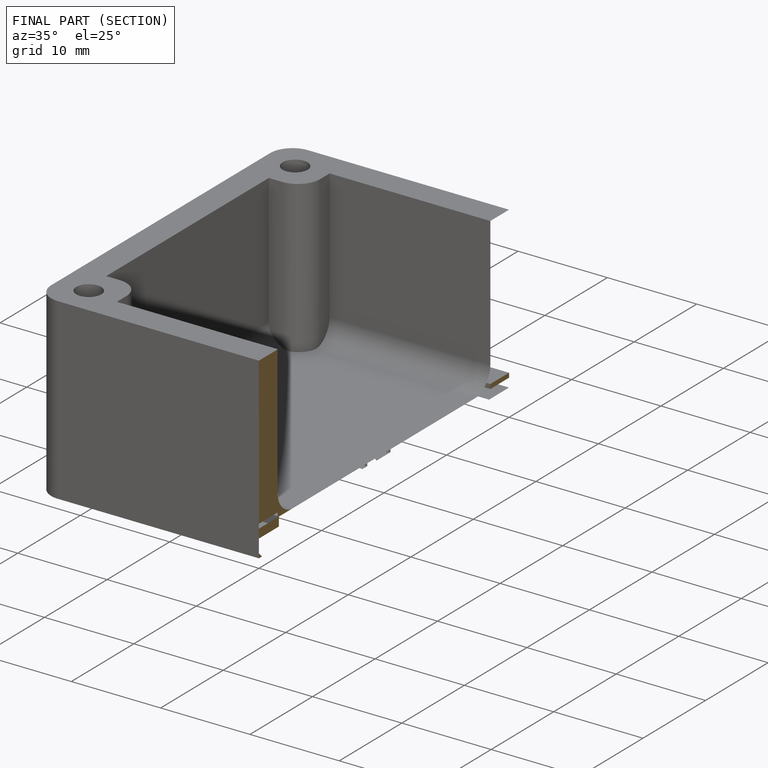
[diagram: finished part — half-section view (interior)]
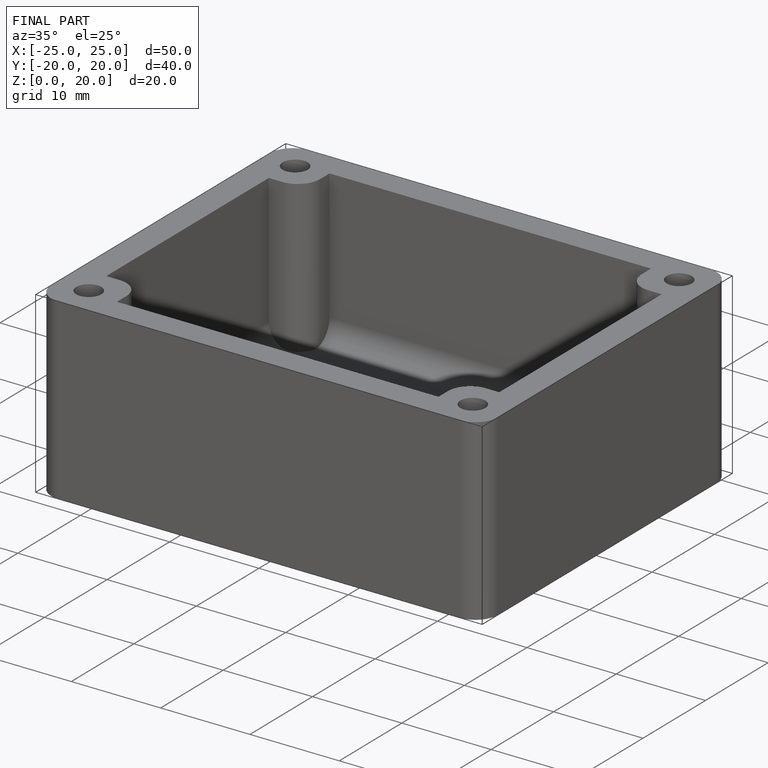
[diagram: finished part — iso view with bounding-box wireframe]
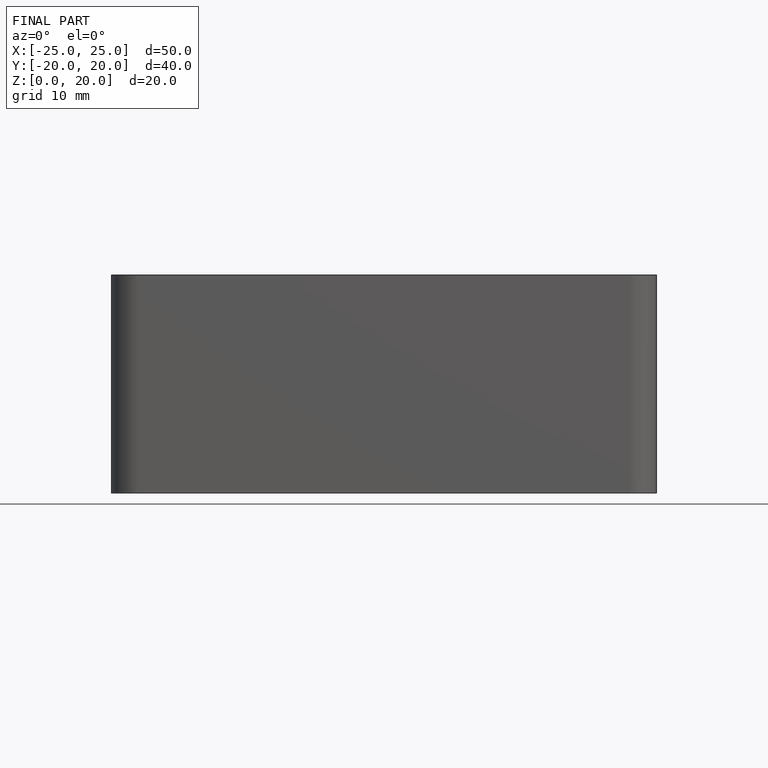
[diagram: finished part — front view with bounding-box wireframe]
